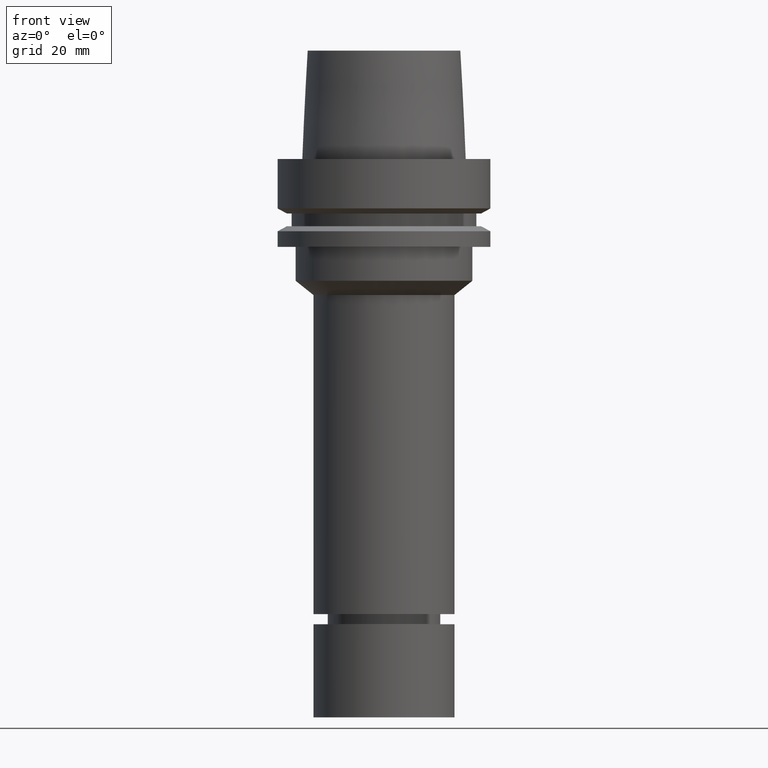
[diagram: clean part render]
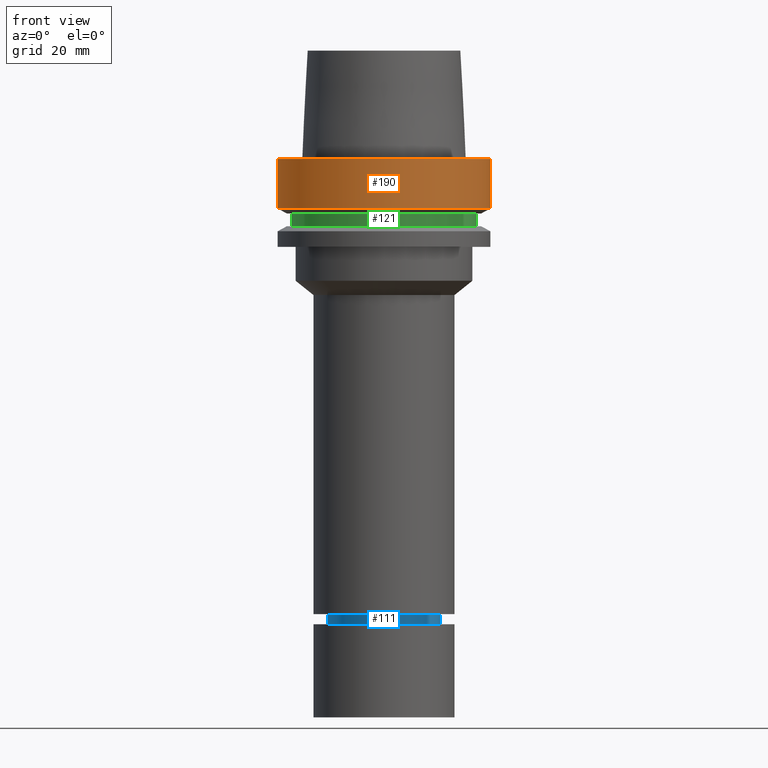
[diagram: same view with three faces highlighted in distinct colors, each labeled with its STEP entity id]
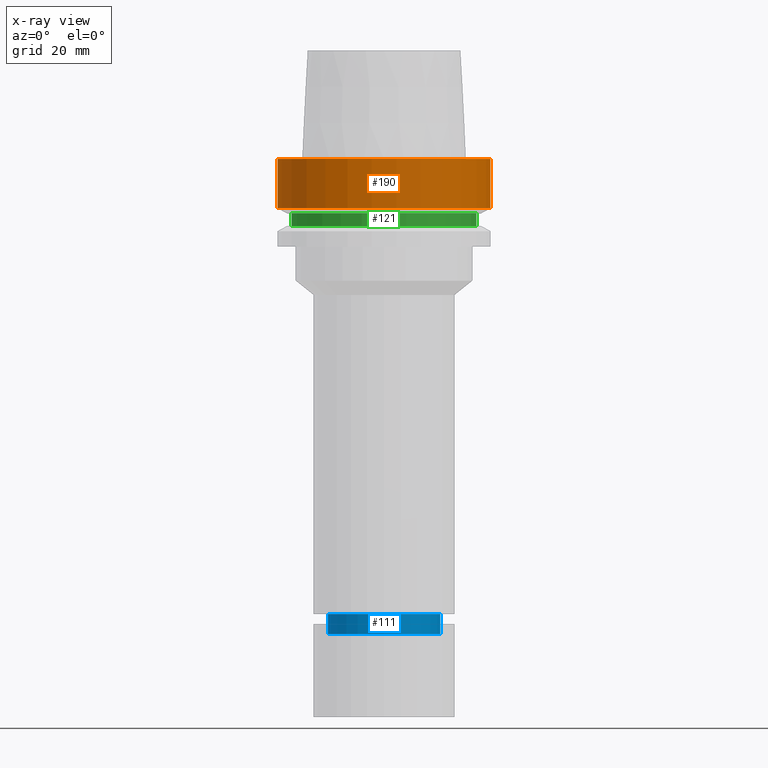
[diagram: x-ray of the same camera — body ghosted, the three highlighted faces saturated]
A machine part, front view with three faces highlighted in distinct colors.
The next image is the same camera in x-ray (body ghosted, the three faces saturated) — at least one of them is partly hidden behind the body in this view.
Their STEP definitions:

[orange] entity #190 — the highlighted cylindrical surface (bore or boss wall) has radius 31.5 mm, axis along (-0, -0, 1).
#187=EDGE_CURVE('Unnamed[1]',#381,#381,#382,.T.);
#190=ADVANCED_FACE('Unnamed[1]',(#385,#386),#387,.T.);
#194=EDGE_CURVE('Unnamed[1]',#392,#392,#393,.T.);
#381=VERTEX_POINT('',#613);
#382=CIRCLE('',#614,31.5000000000001);
#385=FACE_BOUND('',#618,.T.);
#386=FACE_BOUND('',#619,.T.);
#387=CYLINDRICAL_SURFACE('',#620,31.5);
#392=VERTEX_POINT('',#627);
#393=CIRCLE('',#628,31.5);
#613=CARTESIAN_POINT('',(-3.88267476788467E-031,31.5000000000001,3.85763741731417E-015));
#614=AXIS2_PLACEMENT_3D('',#814,#815,#816);
#618=EDGE_LOOP('',(#818));
#619=EDGE_LOOP('',(#819));
#620=AXIS2_PLACEMENT_3D('',#820,#821,#822);
#627=CARTESIAN_POINT('',(8.95369947681261E-016,31.5,-14.6225009252407));
#628=AXIS2_PLACEMENT_3D('',#826,#827,#828);
#814=CARTESIAN_POINT('',(0.0,0.0,0.0));
#815=DIRECTION('',(-6.12323399573677E-017,-1.22464679914735E-016,1.0));
#816=DIRECTION('',(-1.23259516440783E-032,1.0,1.22464679914735E-016));
#818=ORIENTED_EDGE('',*,*,#187,.F.);
#819=ORIENTED_EDGE('',*,*,#194,.T.);
#820=CARTESIAN_POINT('',(4.47684973840631E-016,8.95369947681262E-016,-7.31125046262035));
#821=DIRECTION('',(-6.12323399573677E-017,-1.22464679914735E-016,1.0));
#822=DIRECTION('',(-1.23259516440783E-032,1.0,1.22464679914735E-016));
#826=CARTESIAN_POINT('',(8.95369947681262E-016,1.79073989536252E-015,-14.6225009252407));
#827=DIRECTION('',(-6.12323399573677E-017,-1.22464679914735E-016,1.0));
#828=DIRECTION('',(-1.23259516440783E-032,1.0,1.22464679914735E-016));

[blue] entity #111 — the highlighted cylindrical surface (bore or boss wall) has radius 16.75 mm, axis along (-0, -0, 1).
#103=EDGE_CURVE('Unnamed[1]',#253,#253,#254,.T.);
#111=ADVANCED_FACE('Unnamed[1]',(#264,#265),#266,.T.);
#156=EDGE_CURVE('Unnamed[1]',#333,#333,#334,.T.);
#253=VERTEX_POINT('',#454);
#254=CIRCLE('',#455,16.7499999999907);
#264=FACE_BOUND('',#468,.T.);
#265=FACE_BOUND('',#469,.T.);
#266=CYLINDRICAL_SURFACE('',#470,16.7499999999962);
#333=VERTEX_POINT('',#553);
#334=CIRCLE('',#554,16.7500000000017);
#454=CARTESIAN_POINT('',(8.2357497242659E-015,16.7499999999907,-134.499999999999));
#455=AXIS2_PLACEMENT_3D('',#674,#675,#676);
#468=EDGE_LOOP('',(#686));
#469=EDGE_LOOP('',(#687));
#470=AXIS2_PLACEMENT_3D('',#688,#689,#690);
#553=CARTESIAN_POINT('',(8.60114298906023E-015,16.7500000000017,-140.467324865401));
#554=AXIS2_PLACEMENT_3D('',#759,#760,#761);
#674=CARTESIAN_POINT('',(8.2357497242659E-015,1.64714994485318E-014,-134.499999999999));
#675=DIRECTION('',(-6.12323399573677E-017,-1.22464679914735E-016,1.0));
#676=DIRECTION('',(-1.23259516440783E-032,1.0,1.22464679914735E-016));
#686=ORIENTED_EDGE('',*,*,#103,.F.);
#687=ORIENTED_EDGE('',*,*,#156,.T.);
#688=CARTESIAN_POINT('',(8.41844635666307E-015,1.68368927133261E-014,-137.4836624327));
#689=DIRECTION('',(-6.12323399573676E-017,-1.22464679914735E-016,1.0));
#690=DIRECTION('',(-1.23259516440783E-032,1.0,1.22464679914735E-016));
#759=CARTESIAN_POINT('',(8.60114298906023E-015,1.72022859781205E-014,-140.467324865401));
#760=DIRECTION('',(-6.12323399573677E-017,-1.22464679914735E-016,1.0));
#761=DIRECTION('',(-1.23259516440783E-032,1.0,1.22464679914735E-016));

[green] entity #121 — the highlighted cylindrical surface (bore or boss wall) has radius 27.5 mm, axis along (-0, -0, 1).
#90=EDGE_CURVE('Unnamed[1]',#233,#233,#234,.T.);
#121=ADVANCED_FACE('Unnamed[1]',(#278,#279),#280,.T.);
#161=EDGE_CURVE('Unnamed[1]',#341,#341,#342,.T.);
#233=VERTEX_POINT('',#429);
#234=CIRCLE('',#430,27.5);
#278=FACE_BOUND('',#485,.T.);
#279=FACE_BOUND('',#486,.T.);
#280=CYLINDRICAL_SURFACE('',#487,27.4999999999994);
#341=VERTEX_POINT('',#563);
#342=CIRCLE('',#564,27.4999999999989);
#429=CARTESIAN_POINT('',(9.87371481812537E-016,27.5,-16.1249999999997));
#430=AXIS2_PLACEMENT_3D('',#651,#652,#653);
#485=EDGE_LOOP('',(#699));
#486=EDGE_LOOP('',(#700));
#487=AXIS2_PLACEMENT_3D('',#701,#702,#703);
#563=CARTESIAN_POINT('',(1.21699275665276E-015,27.4999999999989,-19.8750000000013));
#564=AXIS2_PLACEMENT_3D('',#768,#769,#770);
#651=CARTESIAN_POINT('',(9.87371481812538E-016,1.97474296362508E-015,-16.1249999999997));
#652=DIRECTION('',(-6.12323399573677E-017,-1.22464679914735E-016,1.0));
#653=DIRECTION('',(-1.23259516440783E-032,1.0,1.22464679914735E-016));
#699=ORIENTED_EDGE('',*,*,#90,.F.);
#700=ORIENTED_EDGE('',*,*,#161,.T.);
#701=CARTESIAN_POINT('',(1.10218211923265E-015,2.2043642384653E-015,-18.0000000000005));
#702=DIRECTION('',(-6.12323399573677E-017,-1.22464679914735E-016,1.0));
#703=DIRECTION('',(-1.23259516440783E-032,1.0,1.22464679914735E-016));
#768=CARTESIAN_POINT('',(1.21699275665276E-015,2.43398551330552E-015,-19.8750000000013));
#769=DIRECTION('',(-6.12323399573677E-017,-1.22464679914735E-016,1.0));
#770=DIRECTION('',(-1.23259516440783E-032,1.0,1.22464679914735E-016));